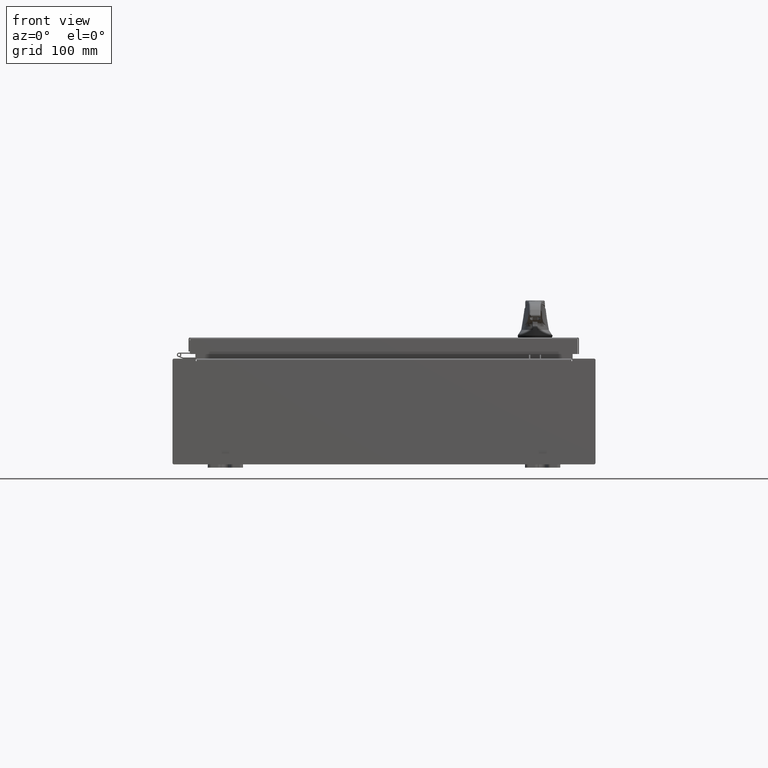
[diagram: clean part render]
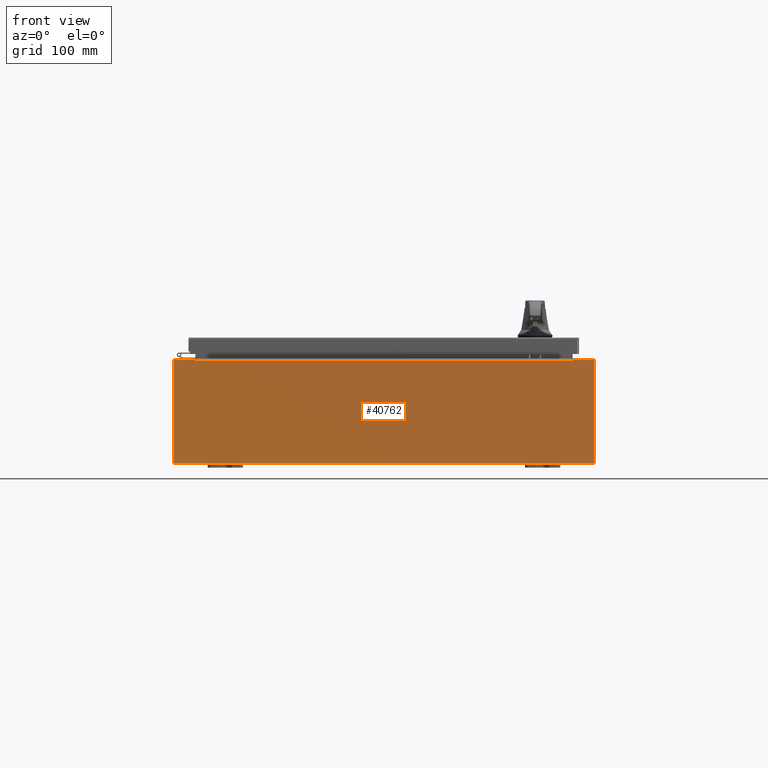
[diagram: same view with one face highlighted and labeled with its STEP entity id]
A machine part, front view. The second image highlights one B-rep face of the part: STEP entity #40762.
In plain terms, the highlighted planar face has unit normal (-0, 1, -0).
Its self-contained STEP definition (entity closure, byte-faithful):
#672 = AXIS2_PLACEMENT_3D ( 'NONE', #100808, #46023, #109978 ) ;
#3591 = DIRECTION ( 'NONE',  ( 1.000000000000000000, 0.0000000000000000000, 0.0000000000000000000 ) ) ;
#4096 = CARTESIAN_POINT ( 'NONE',  ( -11.92530000000000000, 0.0000000000000000000, -2.925299999999999600 ) ) ;
#4145 = VECTOR ( 'NONE', #108300, 39.37007874015748100 ) ;
#6670 = DIRECTION ( 'NONE',  ( 0.0000000000000000000, -1.000000000000000000, 0.0000000000000000000 ) ) ;
#8527 = VECTOR ( 'NONE', #44896, 39.37007874015748100 ) ;
#9010 = VECTOR ( 'NONE', #90718, 39.37007874015748100 ) ;
#9461 = CARTESIAN_POINT ( 'NONE',  ( 10.67455000000000200, 0.0000000000000000000, 2.874950000000000600 ) ) ;
#9562 = LINE ( 'NONE', #58488, #79694 ) ;
#10075 = LINE ( 'NONE', #108150, #61660 ) ;
#10401 = ORIENTED_EDGE ( 'NONE', *, *, #31015, .T. ) ;
#10717 = CARTESIAN_POINT ( 'NONE',  ( 10.63720000000000400, 0.0000000000000000000, 0.0000000000000000000 ) ) ;
#12804 = LINE ( 'NONE', #14797, #82962 ) ;
#14797 = CARTESIAN_POINT ( 'NONE',  ( -11.92530000000000000, 0.0000000000000000000, 2.925300000000000500 ) ) ;
#15396 = CARTESIAN_POINT ( 'NONE',  ( -10.63720000000000400, -0.0000000000000000000, 0.0000000000000000000 ) ) ;
#16900 = CIRCLE ( 'NONE', #672, 0.01867499999999949400 ) ;
#16976 = CARTESIAN_POINT ( 'NONE',  ( -10.67455000000000200, 0.0000000000000000000, 2.874950000000000600 ) ) ;
#19759 = ORIENTED_EDGE ( 'NONE', *, *, #70952, .F. ) ;
#22595 = ORIENTED_EDGE ( 'NONE', *, *, #79185, .F. ) ;
#22653 = VERTEX_POINT ( 'NONE', #9461 ) ;
#23737 = VERTEX_POINT ( 'NONE', #67192 ) ;
#24039 = DIRECTION ( 'NONE',  ( 1.000000000000000000, 0.0000000000000000000, 0.0000000000000000000 ) ) ;
#25530 = LINE ( 'NONE', #89939, #4145 ) ;
#26455 = CARTESIAN_POINT ( 'NONE',  ( -10.65587500000000200, 0.0000000000000000000, 2.874950000000000600 ) ) ;
#27562 = VECTOR ( 'NONE', #79836, 39.37007874015748100 ) ;
#28498 = CARTESIAN_POINT ( 'NONE',  ( 10.63720000000000400, 0.0000000000000000000, 2.912300000000000600 ) ) ;
#29333 = VECTOR ( 'NONE', #35783, 39.37007874015748100 ) ;
#30933 = FACE_OUTER_BOUND ( 'NONE', #43351, .T. ) ;
#31015 = EDGE_CURVE ( 'NONE', #84450, #100408, #12804, .T. ) ;
#33354 = EDGE_CURVE ( 'NONE', #23737, #82237, #25530, .T. ) ;
#33374 = CARTESIAN_POINT ( 'NONE',  ( 10.67455000000000200, 0.0000000000000000000, 2.925300000000000500 ) ) ;
#35716 = DIRECTION ( 'NONE',  ( 0.0000000000000000000, 0.0000000000000000000, -1.000000000000000000 ) ) ;
#35783 = DIRECTION ( 'NONE',  ( -4.340572780400004900E-014, 0.0000000000000000000, -1.000000000000000000 ) ) ;
#36621 = ORIENTED_EDGE ( 'NONE', *, *, #98639, .T. ) ;
#38453 = VERTEX_POINT ( 'NONE', #62055 ) ;
#38825 = VERTEX_POINT ( 'NONE', #64030 ) ;
#39351 = CARTESIAN_POINT ( 'NONE',  ( -10.63720000000000400, 1.024442997624098700E-016, 2.912300000000000600 ) ) ;
#40762 = ADVANCED_FACE ( 'NONE', ( #30933 ), #107043, .F. ) ;
#42482 = DIRECTION ( 'NONE',  ( 0.0000000000000000000, 0.0000000000000000000, -1.000000000000000000 ) ) ;
#43351 = EDGE_LOOP ( 'NONE', ( #19759, #59313, #61764, #53585, #80986, #46891, #22595, #10401, #73113, #36621, #72065, #82452 ) ) ;
#43417 = EDGE_CURVE ( 'NONE', #38453, #52204, #60742, .T. ) ;
#44156 = DIRECTION ( 'NONE',  ( 0.0000000000000000000, 0.0000000000000000000, 1.000000000000000000 ) ) ;
#44896 = DIRECTION ( 'NONE',  ( -0.0000000000000000000, -0.0000000000000000000, 1.000000000000000000 ) ) ;
#46023 = DIRECTION ( 'NONE',  ( -0.0000000000000000000, 1.000000000000000000, -0.0000000000000000000 ) ) ;
#46891 = ORIENTED_EDGE ( 'NONE', *, *, #75419, .F. ) ;
#49285 = VERTEX_POINT ( 'NONE', #4096 ) ;
#52204 = VERTEX_POINT ( 'NONE', #16976 ) ;
#53585 = ORIENTED_EDGE ( 'NONE', *, *, #62419, .T. ) ;
#53931 = CARTESIAN_POINT ( 'NONE',  ( -11.92530000000000000, 0.0000000000000000000, -2.925299999999999600 ) ) ;
#54357 = EDGE_CURVE ( 'NONE', #100408, #82220, #108170, .T. ) ;
#58488 = CARTESIAN_POINT ( 'NONE',  ( -10.63720000000000400, 1.024442997624098700E-016, 2.912300000000000600 ) ) ;
#59313 = ORIENTED_EDGE ( 'NONE', *, *, #43417, .F. ) ;
#59696 = AXIS2_PLACEMENT_3D ( 'NONE', #26455, #90528, #35716 ) ;
#60742 = CIRCLE ( 'NONE', #59696, 0.01867499999999949400 ) ;
#61266 = EDGE_CURVE ( 'NONE', #38825, #101901, #115578, .T. ) ;
#61513 = CARTESIAN_POINT ( 'NONE',  ( 0.0000000000000000000, 0.0000000000000000000, 0.0000000000000000000 ) ) ;
#61660 = VECTOR ( 'NONE', #44156, 39.37007874015748100 ) ;
#61764 = ORIENTED_EDGE ( 'NONE', *, *, #89916, .F. ) ;
#62055 = CARTESIAN_POINT ( 'NONE',  ( -10.63720000000000400, -0.0000000000000000000, 2.874950000000000600 ) ) ;
#62419 = EDGE_CURVE ( 'NONE', #105114, #101901, #9562, .T. ) ;
#64030 = CARTESIAN_POINT ( 'NONE',  ( 10.63720000000000400, 0.0000000000000000000, 2.874950000000000600 ) ) ;
#65965 = CARTESIAN_POINT ( 'NONE',  ( 11.92530000000000000, 0.0000000000000000000, -2.925299999999999600 ) ) ;
#67192 = CARTESIAN_POINT ( 'NONE',  ( -11.92530000000000000, 0.0000000000000000000, 2.925300000000000500 ) ) ;
#70521 = CARTESIAN_POINT ( 'NONE',  ( -11.92530000000000000, 0.0000000000000000000, 2.925300000000000500 ) ) ;
#70636 = DIRECTION ( 'NONE',  ( 0.0000000000000000000, -0.0000000000000000000, -1.000000000000000000 ) ) ;
#70952 = EDGE_CURVE ( 'NONE', #52204, #82237, #10075, .T. ) ;
#72065 = ORIENTED_EDGE ( 'NONE', *, *, #93470, .T. ) ;
#73113 = ORIENTED_EDGE ( 'NONE', *, *, #54357, .T. ) ;
#74747 = DIRECTION ( 'NONE',  ( 0.0000000000000000000, 0.0000000000000000000, 1.000000000000000000 ) ) ;
#75419 = EDGE_CURVE ( 'NONE', #22653, #38825, #16900, .T. ) ;
#78024 = LINE ( 'NONE', #81356, #29333 ) ;
#79185 = EDGE_CURVE ( 'NONE', #84450, #22653, #78024, .T. ) ;
#79694 = VECTOR ( 'NONE', #3591, 39.37007874015748100 ) ;
#79836 = DIRECTION ( 'NONE',  ( 0.0000000000000000000, 0.0000000000000000000, -1.000000000000000000 ) ) ;
#80986 = ORIENTED_EDGE ( 'NONE', *, *, #61266, .F. ) ;
#81356 = CARTESIAN_POINT ( 'NONE',  ( 10.67454999999987700, -0.0000000000000000000, -4.633366117301834200E-013 ) ) ;
#82026 = LINE ( 'NONE', #53931, #9010 ) ;
#82220 = VERTEX_POINT ( 'NONE', #65965 ) ;
#82237 = VERTEX_POINT ( 'NONE', #111926 ) ;
#82452 = ORIENTED_EDGE ( 'NONE', *, *, #33354, .T. ) ;
#82962 = VECTOR ( 'NONE', #24039, 39.37007874015748100 ) ;
#84450 = VERTEX_POINT ( 'NONE', #33374 ) ;
#89916 = EDGE_CURVE ( 'NONE', #105114, #38453, #100596, .T. ) ;
#89939 = CARTESIAN_POINT ( 'NONE',  ( -11.92530000000000000, 0.0000000000000000000, 2.925300000000000500 ) ) ;
#90528 = DIRECTION ( 'NONE',  ( -0.0000000000000000000, 1.000000000000000000, -0.0000000000000000000 ) ) ;
#90718 = DIRECTION ( 'NONE',  ( -1.000000000000000000, -0.0000000000000000000, -0.0000000000000000000 ) ) ;
#91326 = VECTOR ( 'NONE', #74747, 39.37007874015748100 ) ;
#93470 = EDGE_CURVE ( 'NONE', #49285, #23737, #108742, .T. ) ;
#98639 = EDGE_CURVE ( 'NONE', #82220, #49285, #82026, .T. ) ;
#100408 = VERTEX_POINT ( 'NONE', #114467 ) ;
#100596 = LINE ( 'NONE', #15396, #27562 ) ;
#100808 = CARTESIAN_POINT ( 'NONE',  ( 10.65587500000000200, 0.0000000000000000000, 2.874950000000000600 ) ) ;
#101901 = VERTEX_POINT ( 'NONE', #28498 ) ;
#102443 = VECTOR ( 'NONE', #42482, 39.37007874015748100 ) ;
#105114 = VERTEX_POINT ( 'NONE', #39351 ) ;
#107043 = PLANE ( 'NONE',  #110060 ) ;
#108150 = CARTESIAN_POINT ( 'NONE',  ( -10.67455000000000200, -0.0000000000000000000, 0.0000000000000000000 ) ) ;
#108170 = LINE ( 'NONE', #115637, #102443 ) ;
#108300 = DIRECTION ( 'NONE',  ( 1.000000000000000000, 0.0000000000000000000, 0.0000000000000000000 ) ) ;
#108742 = LINE ( 'NONE', #70521, #8527 ) ;
#109978 = DIRECTION ( 'NONE',  ( 0.0000000000000000000, 0.0000000000000000000, -1.000000000000000000 ) ) ;
#110060 = AXIS2_PLACEMENT_3D ( 'NONE', #61513, #6670, #70636 ) ;
#111926 = CARTESIAN_POINT ( 'NONE',  ( -10.67455000000000200, 0.0000000000000000000, 2.925300000000000500 ) ) ;
#114467 = CARTESIAN_POINT ( 'NONE',  ( 11.92530000000000000, 0.0000000000000000000, 2.925300000000000500 ) ) ;
#115578 = LINE ( 'NONE', #10717, #91326 ) ;
#115637 = CARTESIAN_POINT ( 'NONE',  ( 11.92530000000000000, 0.0000000000000000000, 2.925300000000000500 ) ) ;